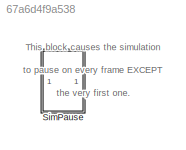
MODEL slx_67a6d4f9a538
KIND library
CONFIG AbsTol = auto
CONFIG EnableMultiTasking = off
CONFIG FixedStep = auto
CONFIG MaxStep = auto
CONFIG MinStep = auto
CONFIG RelTol = 1e-3
CONFIG SampleTimeConstraint = Unconstrained
CONFIG SolverName = VariableStepAuto
CONFIG StartTime = 0.0
CONFIG StopTime = 10.0
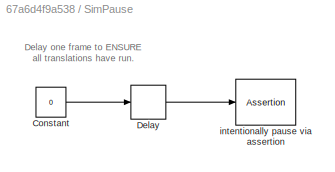
BLOCK [SubSystem] SimPause
BLOCK [Constant] SimPause/Constant
  Value = 0
BLOCK [Delay] SimPause/Delay
  AttributesFormatString = InitialCondition=%<InitialCondition>
  DelayLength = 1
  InitialCondition = 1
  InputPortMap = u0
BLOCK [Assertion] SimPause/intentionally pause via assertion
  AssertionFailFcn = set_param(bdroot,'SimulationCommand','pause'),\ndisp(sprintf('\nSimPause block will cause assertion to invoke a pause:'))
  StopWhenAssertionFail = off
ANNOTATION (root): This block causes the simulation to pause on every frame EXCEPT the very first one.
ANNOTATION SimPause: Delay one frame to ENSURE all translations have run.
LINE SimPause/Constant:1 -> SimPause/Delay:1
LINE SimPause/Delay:1 -> SimPause/intentionally pause via assertion:1
